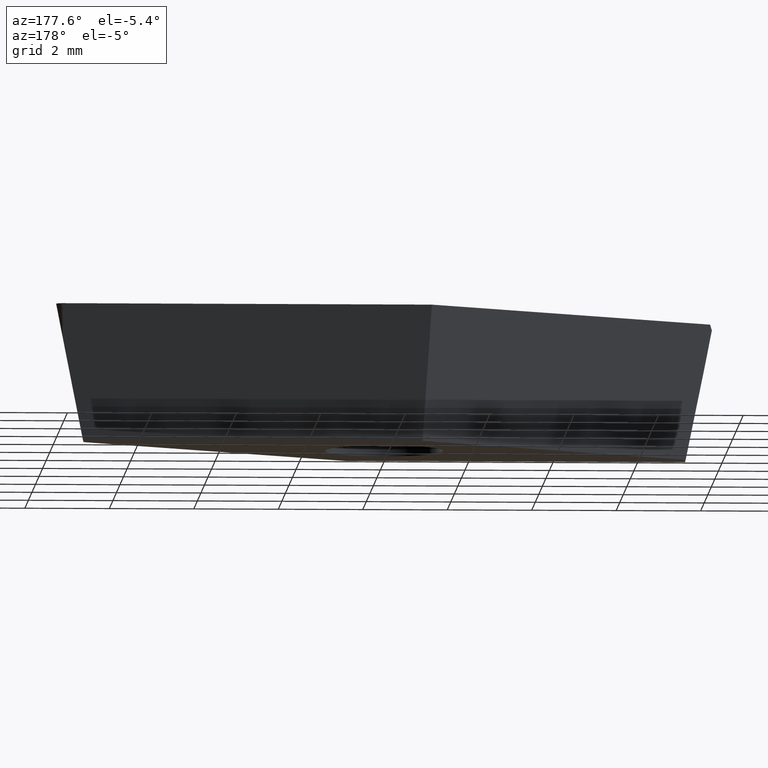
[diagram: clean part render]
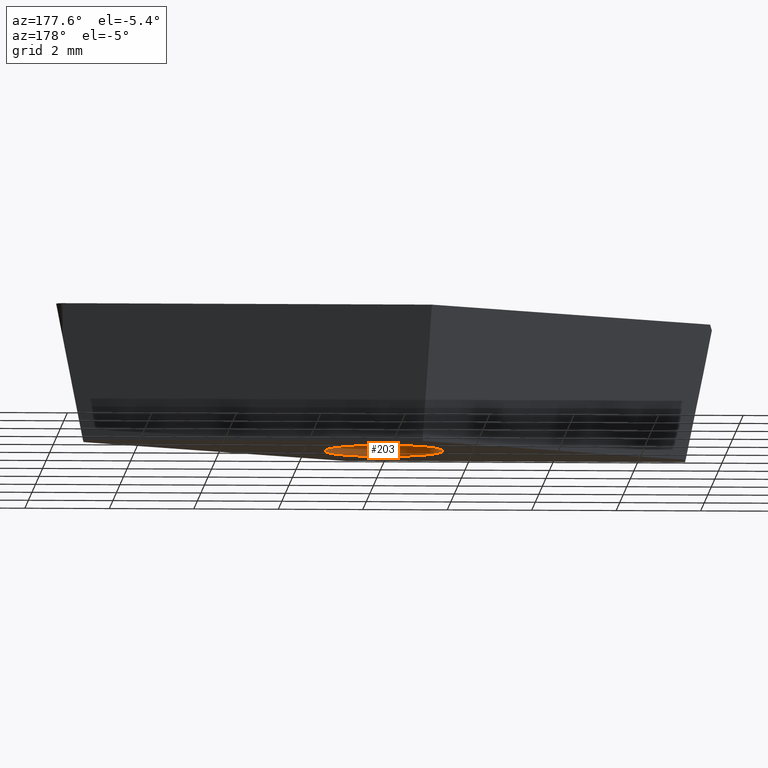
[diagram: same view with one face highlighted and labeled with its STEP entity id]
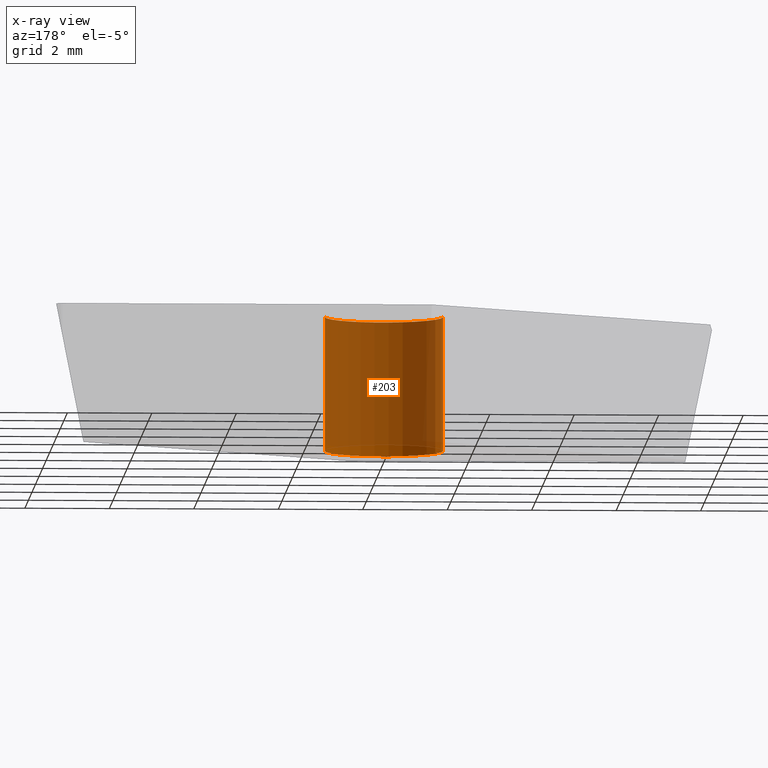
[diagram: x-ray of the same camera — body ghosted, the highlighted face saturated]
A machine part, auxiliary view. The second image highlights one B-rep face of the part: STEP entity #203.
The next image is the same camera in x-ray: the body ghosted, the highlighted face saturated — about 93% of this face is hidden behind the body in this view.
In plain terms, the highlighted cylindrical surface (partial cylindrical patch) has radius 1.4 mm, axis along (-0, -0, 1).
Its self-contained STEP definition (entity closure, byte-faithful):
#3 = CYLINDRICAL_SURFACE ( 'NONE', #445, 1.399999999999999900 ) ;
#22 = AXIS2_PLACEMENT_3D ( 'NONE', #272, #264, #262 ) ;
#26 = ORIENTED_EDGE ( 'NONE', *, *, #408, .T. ) ;
#38 = CARTESIAN_POINT ( 'NONE',  ( -1.399999999999999900, 1.714505518806294100E-016, -3.180000000000000200 ) ) ;
#57 = DIRECTION ( 'NONE',  ( -0.0000000000000000000, -0.0000000000000000000, 1.000000000000000000 ) ) ;
#75 = CARTESIAN_POINT ( 'NONE',  ( 1.399999999999999900, 0.0000000000000000000, 0.0000000000000000000 ) ) ;
#78 = EDGE_CURVE ( 'NONE', #137, #145, #129, .T. ) ;
#81 = CARTESIAN_POINT ( 'NONE',  ( 1.399999999999999900, 0.0000000000000000000, -3.180000000000000200 ) ) ;
#86 = FACE_OUTER_BOUND ( 'NONE', #267, .T. ) ;
#87 = DIRECTION ( 'NONE',  ( 1.000000000000000000, 0.0000000000000000000, 0.0000000000000000000 ) ) ;
#111 = DIRECTION ( 'NONE',  ( 1.000000000000000000, 0.0000000000000000000, 0.0000000000000000000 ) ) ;
#129 = CIRCLE ( 'NONE', #353, 1.399999999999999900 ) ;
#132 = CARTESIAN_POINT ( 'NONE',  ( 0.0000000000000000000, 0.0000000000000000000, -3.180000000000000200 ) ) ;
#134 = DIRECTION ( 'NONE',  ( -0.0000000000000000000, -0.0000000000000000000, 1.000000000000000000 ) ) ;
#137 = VERTEX_POINT ( 'NONE', #213 ) ;
#145 = VERTEX_POINT ( 'NONE', #75 ) ;
#161 = VERTEX_POINT ( 'NONE', #38 ) ;
#173 = CARTESIAN_POINT ( 'NONE',  ( 1.399999999999999900, 0.0000000000000000000, -3.180000000000000200 ) ) ;
#180 = VERTEX_POINT ( 'NONE', #81 ) ;
#184 = ORIENTED_EDGE ( 'NONE', *, *, #398, .F. ) ;
#194 = DIRECTION ( 'NONE',  ( 0.0000000000000000000, 0.0000000000000000000, 1.000000000000000000 ) ) ;
#203 = ADVANCED_FACE ( 'NONE', ( #86 ), #3, .F. ) ;
#213 = CARTESIAN_POINT ( 'NONE',  ( -1.399999999999999900, 1.714505518806294100E-016, 0.0000000000000000000 ) ) ;
#219 = ORIENTED_EDGE ( 'NONE', *, *, #78, .T. ) ;
#244 = ORIENTED_EDGE ( 'NONE', *, *, #428, .F. ) ;
#245 = DIRECTION ( 'NONE',  ( -0.0000000000000000000, -0.0000000000000000000, 1.000000000000000000 ) ) ;
#255 = CARTESIAN_POINT ( 'NONE',  ( -1.399999999999999900, 1.714505518806294100E-016, -3.180000000000000200 ) ) ;
#262 = DIRECTION ( 'NONE',  ( 1.000000000000000000, 0.0000000000000000000, 0.0000000000000000000 ) ) ;
#264 = DIRECTION ( 'NONE',  ( 0.0000000000000000000, 0.0000000000000000000, 1.000000000000000000 ) ) ;
#267 = EDGE_LOOP ( 'NONE', ( #184, #26, #219, #244 ) ) ;
#272 = CARTESIAN_POINT ( 'NONE',  ( 0.0000000000000000000, 0.0000000000000000000, -3.180000000000000200 ) ) ;
#296 = VECTOR ( 'NONE', #134, 1000.000000000000000 ) ;
#329 = LINE ( 'NONE', #173, #296 ) ;
#353 = AXIS2_PLACEMENT_3D ( 'NONE', #423, #194, #87 ) ;
#367 = VECTOR ( 'NONE', #245, 1000.000000000000000 ) ;
#377 = LINE ( 'NONE', #255, #367 ) ;
#398 = EDGE_CURVE ( 'NONE', #161, #180, #415, .T. ) ;
#408 = EDGE_CURVE ( 'NONE', #161, #137, #377, .T. ) ;
#415 = CIRCLE ( 'NONE', #22, 1.399999999999999900 ) ;
#423 = CARTESIAN_POINT ( 'NONE',  ( 0.0000000000000000000, 0.0000000000000000000, 0.0000000000000000000 ) ) ;
#428 = EDGE_CURVE ( 'NONE', #180, #145, #329, .T. ) ;
#445 = AXIS2_PLACEMENT_3D ( 'NONE', #132, #57, #111 ) ;